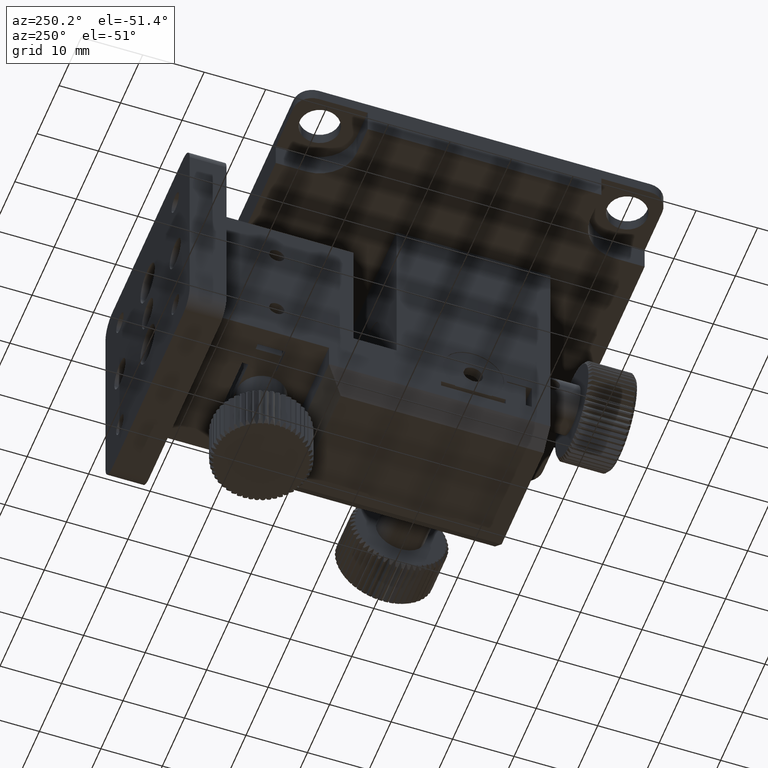
[diagram: clean part render]
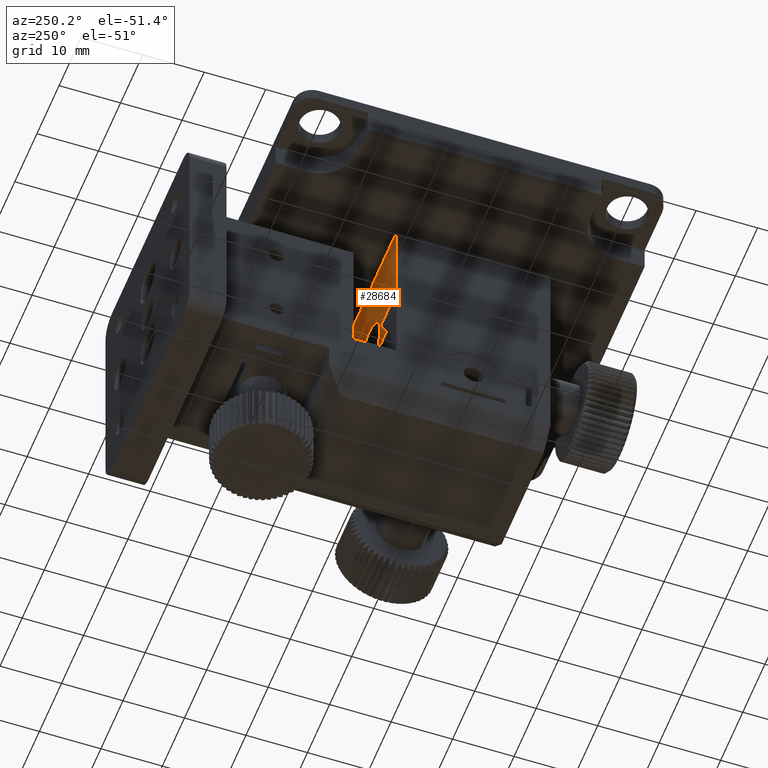
[diagram: same view with one face highlighted and labeled with its STEP entity id]
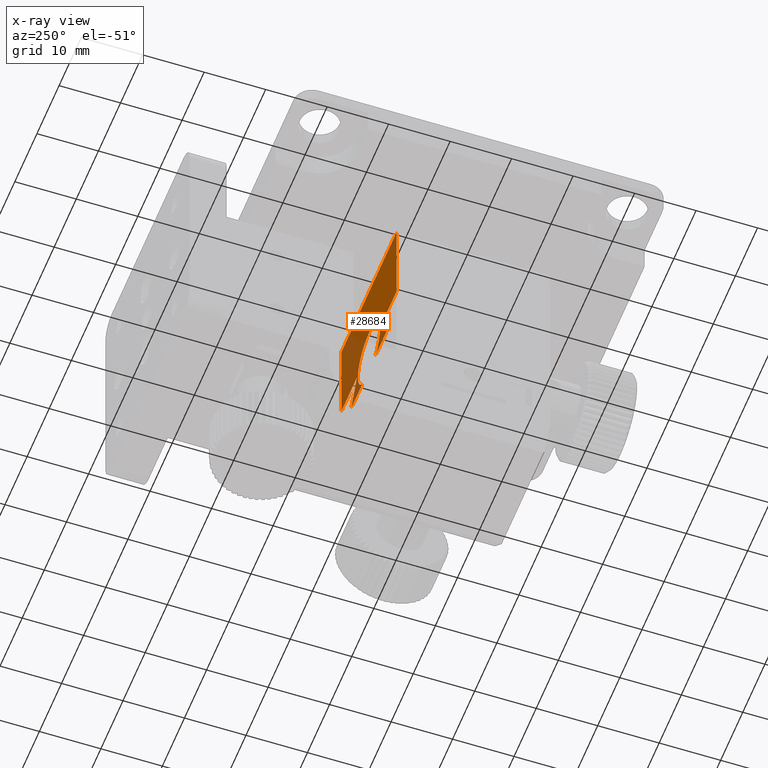
[diagram: x-ray of the same camera — body ghosted, the highlighted face saturated]
A machine part, auxiliary view. The second image highlights one B-rep face of the part: STEP entity #28684.
The next image is the same camera in x-ray: the body ghosted, the highlighted face saturated — about 35% of this face is hidden behind the body in this view.
In plain terms, the highlighted planar face has unit normal (-0, 1, 0).
Its self-contained STEP definition (entity closure, byte-faithful):
#322 = CARTESIAN_POINT ( 'NONE',  ( -12.50000000000000200, 8.000000000000000000, 0.0000000000000000000 ) ) ;
#515 = DIRECTION ( 'NONE',  ( 0.5000000000000041100, 0.0000000000000000000, -0.8660254037844362700 ) ) ;
#1166 = LINE ( 'NONE', #7233, #29273 ) ;
#1214 = CARTESIAN_POINT ( 'NONE',  ( 0.0000000000000000000, 8.000000000000000000, -15.00000000000000000 ) ) ;
#1271 = ORIENTED_EDGE ( 'NONE', *, *, #5952, .T. ) ;
#1446 = EDGE_CURVE ( 'NONE', #20338, #2376, #37745, .T. ) ;
#2328 = DIRECTION ( 'NONE',  ( 1.000000000000000000, 0.0000000000000000000, 0.0000000000000000000 ) ) ;
#2376 = VERTEX_POINT ( 'NONE', #18501 ) ;
#2902 = VECTOR ( 'NONE', #515, 1000.000000000000100 ) ;
#3868 = LINE ( 'NONE', #13966, #17520 ) ;
#3921 = LINE ( 'NONE', #11344, #32987 ) ;
#4666 = VERTEX_POINT ( 'NONE', #23852 ) ;
#4700 = ORIENTED_EDGE ( 'NONE', *, *, #8817, .T. ) ;
#5321 = VERTEX_POINT ( 'NONE', #31333 ) ;
#5952 = EDGE_CURVE ( 'NONE', #30821, #17481, #23758, .T. ) ;
#6673 = ORIENTED_EDGE ( 'NONE', *, *, #13162, .T. ) ;
#6698 = EDGE_CURVE ( 'NONE', #17481, #25016, #1166, .T. ) ;
#7043 = CARTESIAN_POINT ( 'NONE',  ( -5.000000000000001800, 8.000000000000000000, -15.00000000000000000 ) ) ;
#7233 = CARTESIAN_POINT ( 'NONE',  ( -5.401923788646660000, 8.000000000000000000, -14.49999999999999800 ) ) ;
#7256 = DIRECTION ( 'NONE',  ( 1.000000000000000000, 0.0000000000000000000, 0.0000000000000000000 ) ) ;
#7391 = CARTESIAN_POINT ( 'NONE',  ( 12.50000000000000200, 8.000000000000000000, 0.0000000000000000000 ) ) ;
#7877 = LINE ( 'NONE', #7883, #19720 ) ;
#7883 = CARTESIAN_POINT ( 'NONE',  ( -12.50000000000000000, 8.000000000000000000, -14.49999999999999800 ) ) ;
#8027 = VERTEX_POINT ( 'NONE', #18119 ) ;
#8350 = CIRCLE ( 'NONE', #32124, 5.000000000000001800 ) ;
#8817 = EDGE_CURVE ( 'NONE', #33402, #15093, #3868, .T. ) ;
#10210 = CARTESIAN_POINT ( 'NONE',  ( 3.000000000000000000, 8.000000000000000000, -19.00000000000000000 ) ) ;
#10408 = ORIENTED_EDGE ( 'NONE', *, *, #21827, .T. ) ;
#10435 = DIRECTION ( 'NONE',  ( -0.0000000000000000000, 1.000000000000000000, 0.0000000000000000000 ) ) ;
#10591 = ORIENTED_EDGE ( 'NONE', *, *, #1446, .T. ) ;
#10663 = FACE_OUTER_BOUND ( 'NONE', #23088, .T. ) ;
#11200 = EDGE_CURVE ( 'NONE', #5321, #4666, #8350, .T. ) ;
#11344 = CARTESIAN_POINT ( 'NONE',  ( -8.000000000000005300, 8.000000000000000000, -19.00000000000000000 ) ) ;
#11400 = AXIS2_PLACEMENT_3D ( 'NONE', #11843, #17915, #32789 ) ;
#11476 = DIRECTION ( 'NONE',  ( -1.000000000000000000, 0.0000000000000000000, 0.0000000000000000000 ) ) ;
#11843 = CARTESIAN_POINT ( 'NONE',  ( 0.0000000000000000000, 8.000000000000000000, -15.00000000000000000 ) ) ;
#13162 = EDGE_CURVE ( 'NONE', #25016, #33402, #7877, .T. ) ;
#13680 = ORIENTED_EDGE ( 'NONE', *, *, #34138, .T. ) ;
#13966 = CARTESIAN_POINT ( 'NONE',  ( -12.50000000000000200, 8.000000000000000000, 0.0000000000000000000 ) ) ;
#15093 = VERTEX_POINT ( 'NONE', #24434 ) ;
#15168 = CARTESIAN_POINT ( 'NONE',  ( -5.401923788646660000, 8.000000000000000000, -14.49999999999999800 ) ) ;
#15644 = CARTESIAN_POINT ( 'NONE',  ( 5.401923788646656500, 8.000000000000000000, -14.50000000000000000 ) ) ;
#15645 = ORIENTED_EDGE ( 'NONE', *, *, #31877, .F. ) ;
#16485 = EDGE_CURVE ( 'NONE', #28139, #5321, #17596, .T. ) ;
#16612 = EDGE_CURVE ( 'NONE', #15093, #20338, #36670, .T. ) ;
#17026 = DIRECTION ( 'NONE',  ( 1.000000000000000000, 0.0000000000000000000, 0.0000000000000000000 ) ) ;
#17354 = CARTESIAN_POINT ( 'NONE',  ( 0.0000000000000000000, 8.000000000000000000, -15.00000000000000000 ) ) ;
#17481 = VERTEX_POINT ( 'NONE', #15168 ) ;
#17520 = VECTOR ( 'NONE', #17026, 1000.000000000000000 ) ;
#17596 = CIRCLE ( 'NONE', #11400, 5.000000000000001800 ) ;
#17915 = DIRECTION ( 'NONE',  ( 0.0000000000000000000, 1.000000000000000000, 0.0000000000000000000 ) ) ;
#18119 = CARTESIAN_POINT ( 'NONE',  ( -3.000000000000003100, 8.000000000000000000, -19.00000000000000000 ) ) ;
#18239 = DIRECTION ( 'NONE',  ( -1.000000000000000000, 0.0000000000000000000, -2.443934700506770900E-016 ) ) ;
#18501 = CARTESIAN_POINT ( 'NONE',  ( 5.401923788646656500, 8.000000000000000000, -14.50000000000000000 ) ) ;
#18592 = VECTOR ( 'NONE', #22405, 1000.000000000000100 ) ;
#19571 = ORIENTED_EDGE ( 'NONE', *, *, #6698, .T. ) ;
#19720 = VECTOR ( 'NONE', #28869, 1000.000000000000000 ) ;
#20338 = VERTEX_POINT ( 'NONE', #28816 ) ;
#20870 = EDGE_CURVE ( 'NONE', #8027, #30821, #3921, .T. ) ;
#21684 = CARTESIAN_POINT ( 'NONE',  ( 8.000000000000000000, 8.000000000000000000, -19.00000000000000000 ) ) ;
#21827 = EDGE_CURVE ( 'NONE', #2376, #34873, #28244, .T. ) ;
#21863 = DIRECTION ( 'NONE',  ( 1.000000000000000000, 0.0000000000000000000, 0.0000000000000000000 ) ) ;
#22405 = DIRECTION ( 'NONE',  ( 0.5000000000000042200, 0.0000000000000000000, 0.8660254037844361500 ) ) ;
#22425 = PLANE ( 'NONE',  #30281 ) ;
#22527 = CARTESIAN_POINT ( 'NONE',  ( -8.000000000000005300, 8.000000000000000000, -19.00000000000000000 ) ) ;
#23088 = EDGE_LOOP ( 'NONE', ( #15645, #38181, #1271, #19571, #6673, #4700, #34339, #10591, #10408, #13680, #24428, #33593 ) ) ;
#23758 = LINE ( 'NONE', #22527, #18592 ) ;
#23852 = CARTESIAN_POINT ( 'NONE',  ( 2.999999999999998200, 8.000000000000000000, -19.00000000000000400 ) ) ;
#24426 = DIRECTION ( 'NONE',  ( -1.196361017915039500E-016, 0.0000000000000000000, -1.000000000000000000 ) ) ;
#24428 = ORIENTED_EDGE ( 'NONE', *, *, #11200, .F. ) ;
#24434 = CARTESIAN_POINT ( 'NONE',  ( 12.50000000000000200, 8.000000000000000000, 0.0000000000000000000 ) ) ;
#25016 = VERTEX_POINT ( 'NONE', #30567 ) ;
#26553 = CARTESIAN_POINT ( 'NONE',  ( 8.000000000000000000, 8.000000000000000000, -19.00000000000000000 ) ) ;
#27377 = AXIS2_PLACEMENT_3D ( 'NONE', #17354, #38169, #2328 ) ;
#28139 = VERTEX_POINT ( 'NONE', #7043 ) ;
#28244 = LINE ( 'NONE', #21684, #2902 ) ;
#28684 = ADVANCED_FACE ( 'NONE', ( #10663 ), #22425, .T. ) ;
#28751 = VECTOR ( 'NONE', #24426, 1000.000000000000000 ) ;
#28816 = CARTESIAN_POINT ( 'NONE',  ( 12.50000000000000000, 8.000000000000000000, -14.49999999999999800 ) ) ;
#28869 = DIRECTION ( 'NONE',  ( -1.196361017915039500E-016, 0.0000000000000000000, 1.000000000000000000 ) ) ;
#29273 = VECTOR ( 'NONE', #37597, 1000.000000000000000 ) ;
#29675 = CIRCLE ( 'NONE', #27377, 5.000000000000001800 ) ;
#30281 = AXIS2_PLACEMENT_3D ( 'NONE', #7391, #10435, #7256 ) ;
#30567 = CARTESIAN_POINT ( 'NONE',  ( -12.50000000000000000, 8.000000000000000000, -14.49999999999999800 ) ) ;
#30821 = VERTEX_POINT ( 'NONE', #38548 ) ;
#31166 = DIRECTION ( 'NONE',  ( -1.000000000000000000, 0.0000000000000000000, 0.0000000000000000000 ) ) ;
#31333 = CARTESIAN_POINT ( 'NONE',  ( 5.000000000000001800, 8.000000000000000000, -15.00000000000000000 ) ) ;
#31877 = EDGE_CURVE ( 'NONE', #8027, #28139, #29675, .T. ) ;
#32124 = AXIS2_PLACEMENT_3D ( 'NONE', #1214, #36800, #21863 ) ;
#32789 = DIRECTION ( 'NONE',  ( 1.000000000000000000, 0.0000000000000000000, 0.0000000000000000000 ) ) ;
#32987 = VECTOR ( 'NONE', #11476, 1000.000000000000000 ) ;
#33402 = VERTEX_POINT ( 'NONE', #322 ) ;
#33593 = ORIENTED_EDGE ( 'NONE', *, *, #16485, .F. ) ;
#34138 = EDGE_CURVE ( 'NONE', #34873, #4666, #38799, .T. ) ;
#34339 = ORIENTED_EDGE ( 'NONE', *, *, #16612, .T. ) ;
#34516 = VECTOR ( 'NONE', #18239, 1000.000000000000000 ) ;
#34873 = VERTEX_POINT ( 'NONE', #26553 ) ;
#36649 = CARTESIAN_POINT ( 'NONE',  ( 12.50000000000000000, 8.000000000000000000, -14.49999999999999800 ) ) ;
#36670 = LINE ( 'NONE', #36649, #28751 ) ;
#36800 = DIRECTION ( 'NONE',  ( 0.0000000000000000000, 1.000000000000000000, 0.0000000000000000000 ) ) ;
#37597 = DIRECTION ( 'NONE',  ( -1.000000000000000000, 0.0000000000000000000, 0.0000000000000000000 ) ) ;
#37745 = LINE ( 'NONE', #15644, #34516 ) ;
#37851 = VECTOR ( 'NONE', #31166, 1000.000000000000000 ) ;
#38169 = DIRECTION ( 'NONE',  ( 0.0000000000000000000, 1.000000000000000000, 0.0000000000000000000 ) ) ;
#38181 = ORIENTED_EDGE ( 'NONE', *, *, #20870, .T. ) ;
#38548 = CARTESIAN_POINT ( 'NONE',  ( -8.000000000000005300, 8.000000000000000000, -19.00000000000000000 ) ) ;
#38799 = LINE ( 'NONE', #10210, #37851 ) ;